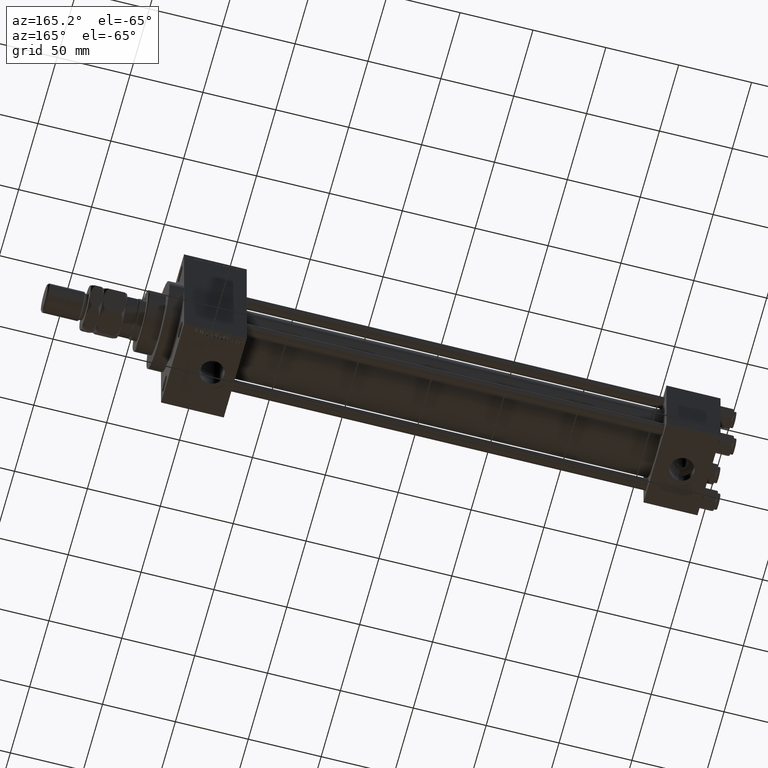
[diagram: clean part render]
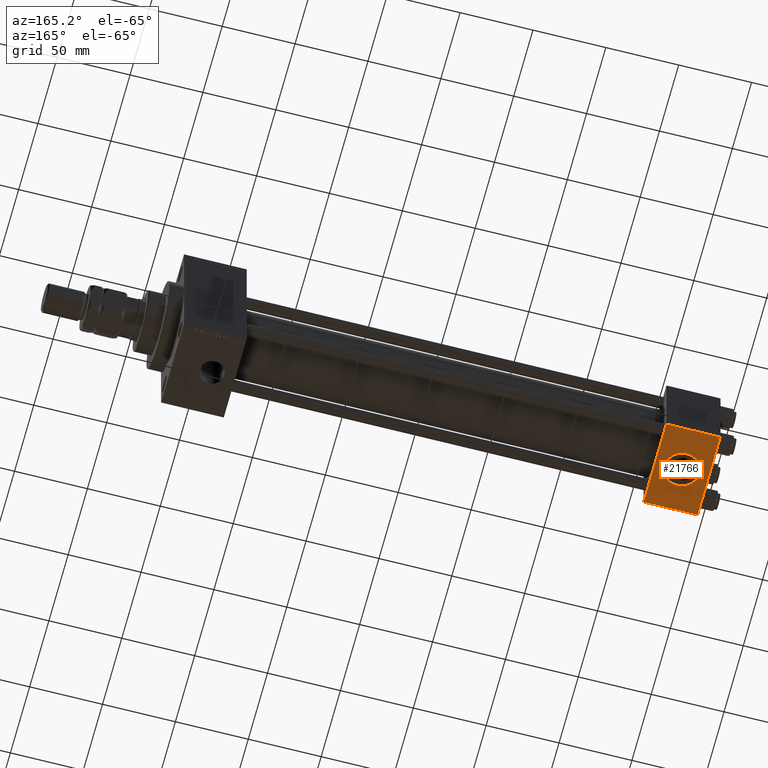
[diagram: same view with one face highlighted and labeled with its STEP entity id]
A machine part, auxiliary view. The second image highlights one B-rep face of the part: STEP entity #21766.
In plain terms, the highlighted planar face has unit normal (0, 0, -1).
Its self-contained STEP definition (entity closure, byte-faithful):
#243 = CIRCLE ( 'NONE', #17494, 12.00000000000000178 ) ;
#1111 = DIRECTION ( 'NONE',  ( 0.000000000000000000, -1.000000000000000000, -1.156482317317871725E-16 ) ) ;
#1330 = EDGE_CURVE ( 'NONE', #7296, #46537, #8104, .T. ) ;
#1816 = CARTESIAN_POINT ( 'NONE',  ( 0.000000000000000000, 29.49999999999997868, -30.00000000000000000 ) ) ;
#3614 = CARTESIAN_POINT ( 'NONE',  ( 18.50000000000000355, 12.00000000000000355, -30.00000000000000711 ) ) ;
#4654 = ORIENTED_EDGE ( 'NONE', *, *, #22695, .T. ) ;
#5228 = CARTESIAN_POINT ( 'NONE',  ( 37.00000000000000000, 29.99999999999999289, -30.00000000000000000 ) ) ;
#5435 = DIRECTION ( 'NONE',  ( 1.000000000000000000, 0.000000000000000000, 0.000000000000000000 ) ) ;
#5609 = FACE_OUTER_BOUND ( 'NONE', #7961, .T. ) ;
#5868 = DIRECTION ( 'NONE',  ( 0.000000000000000000, 1.000000000000000000, 1.156482317317871725E-16 ) ) ;
#7296 = VERTEX_POINT ( 'NONE', #29859 ) ;
#7961 = EDGE_LOOP ( 'NONE', ( #42571, #46696, #34829, #4654 ) ) ;
#8104 = CIRCLE ( 'NONE', #46705, 12.00000000000000178 ) ;
#8180 = CARTESIAN_POINT ( 'NONE',  ( 37.00000000000000000, -29.50000000000000000, -30.00000000000000711 ) ) ;
#11152 = CARTESIAN_POINT ( 'NONE',  ( 18.50000000000000355, 2.265018109976774967E-15, -30.00000000000000355 ) ) ;
#11706 = VECTOR ( 'NONE', #50572, 1000.000000000000000 ) ;
#11816 = EDGE_CURVE ( 'NONE', #46537, #7296, #243, .T. ) ;
#13422 = LINE ( 'NONE', #17774, #22601 ) ;
#16138 = VERTEX_POINT ( 'NONE', #36058 ) ;
#17494 = AXIS2_PLACEMENT_3D ( 'NONE', #30945, #34546, #43294 ) ;
#17736 = AXIS2_PLACEMENT_3D ( 'NONE', #29257, #26169, #5868 ) ;
#17774 = CARTESIAN_POINT ( 'NONE',  ( 37.00000000000000000, 29.49999999999997868, -30.00000000000000000 ) ) ;
#19428 = CARTESIAN_POINT ( 'NONE',  ( 37.00000000000000000, 29.49999999999997868, -30.00000000000000000 ) ) ;
#20032 = VERTEX_POINT ( 'NONE', #1816 ) ;
#20610 = VECTOR ( 'NONE', #1111, 1000.000000000000000 ) ;
#21398 = ORIENTED_EDGE ( 'NONE', *, *, #1330, .F. ) ;
#21766 = ADVANCED_FACE ( 'NONE', ( #45477, #5609 ), #41856, .T. ) ;
#22601 = VECTOR ( 'NONE', #5435, 1000.000000000000000 ) ;
#22695 = EDGE_CURVE ( 'NONE', #23688, #16138, #43154, .T. ) ;
#23100 = VERTEX_POINT ( 'NONE', #19428 ) ;
#23688 = VERTEX_POINT ( 'NONE', #8180 ) ;
#24726 = EDGE_CURVE ( 'NONE', #20032, #23100, #13422, .T. ) ;
#26169 = DIRECTION ( 'NONE',  ( 0.000000000000000000, 1.156482317317871725E-16, -1.000000000000000000 ) ) ;
#26213 = EDGE_LOOP ( 'NONE', ( #47323, #21398 ) ) ;
#26941 = DIRECTION ( 'NONE',  ( -1.000000000000000000, 0.000000000000000000, 0.000000000000000000 ) ) ;
#28624 = LINE ( 'NONE', #5228, #20610 ) ;
#29257 = CARTESIAN_POINT ( 'NONE',  ( 37.00000000000000000, 29.99999999999999289, -30.00000000000000000 ) ) ;
#29859 = CARTESIAN_POINT ( 'NONE',  ( 18.50000000000000355, -12.00000000000000000, -30.00000000000000000 ) ) ;
#30945 = CARTESIAN_POINT ( 'NONE',  ( 18.50000000000000355, 2.265018109976774967E-15, -30.00000000000000355 ) ) ;
#34546 = DIRECTION ( 'NONE',  ( 0.000000000000000000, -1.734723475976806848E-16, -1.000000000000000000 ) ) ;
#34829 = ORIENTED_EDGE ( 'NONE', *, *, #40573, .T. ) ;
#35032 = VECTOR ( 'NONE', #26941, 1000.000000000000000 ) ;
#35112 = CARTESIAN_POINT ( 'NONE',  ( 0.000000000000000000, 29.99999999999999289, -30.00000000000000000 ) ) ;
#35313 = DIRECTION ( 'NONE',  ( 0.000000000000000000, 1.000000000000000000, -2.891205793294677833E-16 ) ) ;
#36058 = CARTESIAN_POINT ( 'NONE',  ( 0.000000000000000000, -29.50000000000000000, -30.00000000000000711 ) ) ;
#40573 = EDGE_CURVE ( 'NONE', #23100, #23688, #28624, .T. ) ;
#40858 = LINE ( 'NONE', #35112, #11706 ) ;
#41856 = PLANE ( 'NONE',  #17736 ) ;
#42528 = DIRECTION ( 'NONE',  ( 0.000000000000000000, -1.734723475976806848E-16, -1.000000000000000000 ) ) ;
#42571 = ORIENTED_EDGE ( 'NONE', *, *, #46919, .F. ) ;
#43154 = LINE ( 'NONE', #50115, #35032 ) ;
#43294 = DIRECTION ( 'NONE',  ( 0.000000000000000000, 1.000000000000000000, -2.891205793294677833E-16 ) ) ;
#45477 = FACE_BOUND ( 'NONE', #26213, .T. ) ;
#46537 = VERTEX_POINT ( 'NONE', #3614 ) ;
#46696 = ORIENTED_EDGE ( 'NONE', *, *, #24726, .T. ) ;
#46705 = AXIS2_PLACEMENT_3D ( 'NONE', #11152, #42528, #35313 ) ;
#46919 = EDGE_CURVE ( 'NONE', #20032, #16138, #40858, .T. ) ;
#47323 = ORIENTED_EDGE ( 'NONE', *, *, #11816, .F. ) ;
#50115 = CARTESIAN_POINT ( 'NONE',  ( 0.000000000000000000, -29.50000000000001066, -30.00000000000000711 ) ) ;
#50572 = DIRECTION ( 'NONE',  ( 0.000000000000000000, -1.000000000000000000, -1.156482317317871725E-16 ) ) ;